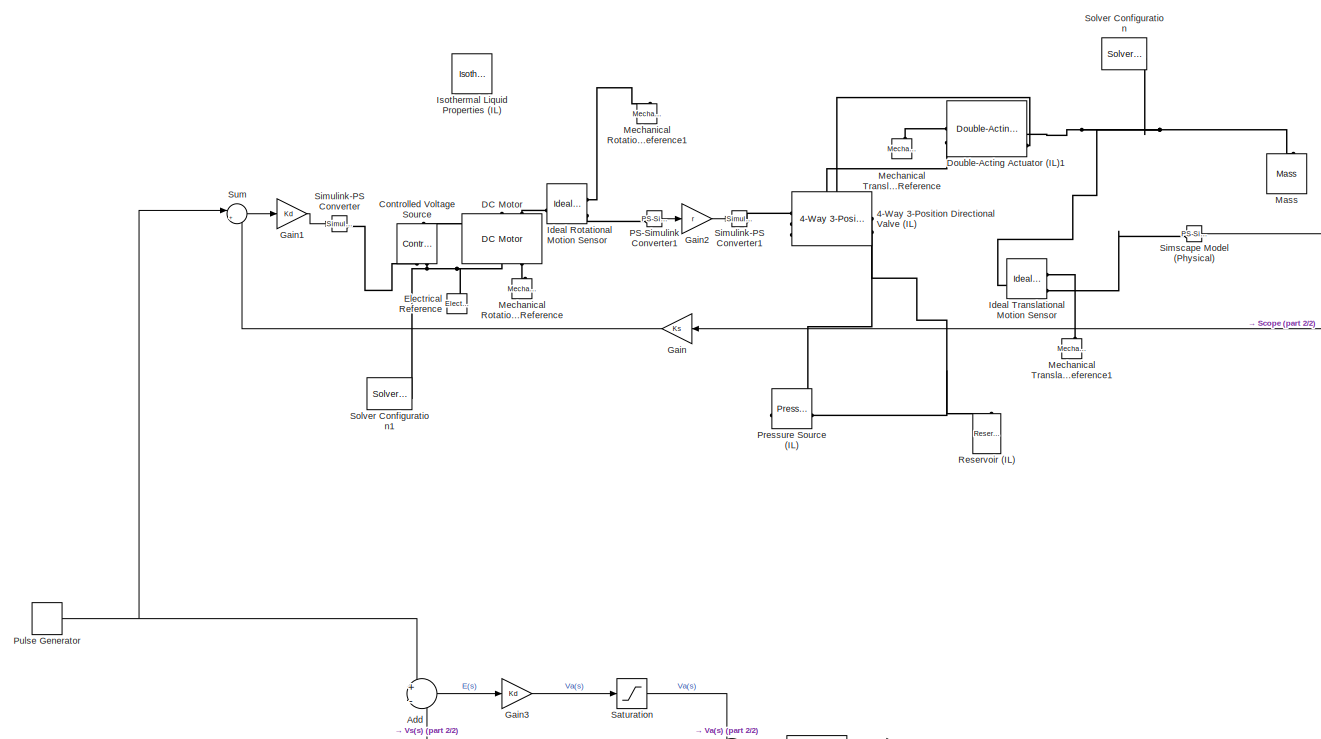
[diagram: root canvas - part 1/2, middle left region]
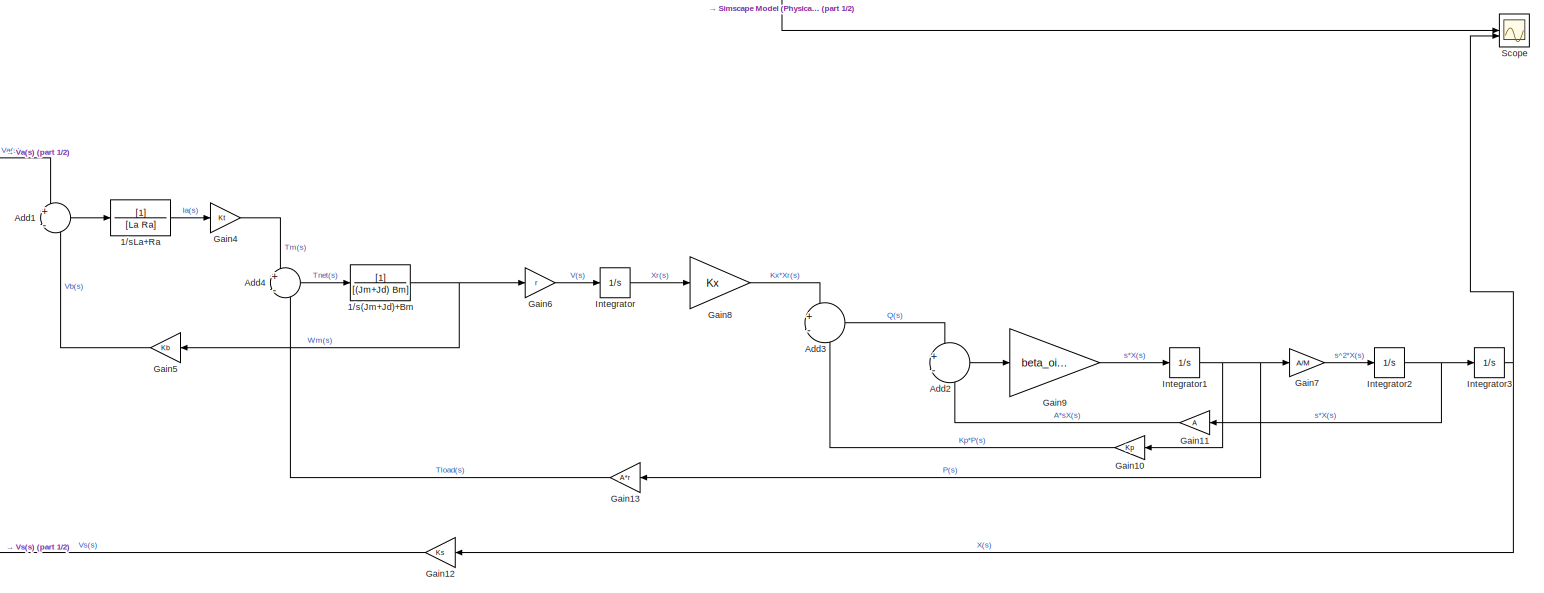
[diagram: root canvas - part 2/2, bottom center region]
MODEL slx_182fb270e482
KIND model
CONFIG AbsTol = 1e-3
CONFIG EnableMultiTasking = off
CONFIG FixedStep = auto
CONFIG MaxStep = 1e-4
CONFIG MinStep = auto
CONFIG RelTol = 1e-3
CONFIG SampleTimeConstraint = Unconstrained
CONFIG SolverName = ode15s
CONFIG StartTime = 0.0
CONFIG StopTime = 10.0
BLOCK [TransferFcn] 1//s(Jm+Jd)+Bm
  Denominator = [(Jm+Jd) Bm]
BLOCK [TransferFcn] 1//sLa+Ra
  Denominator = [La Ra]
BLOCK [Reference] 4-Way 3-Position Directional Valve (IL)  REF=SimscapeFluids_lib/Isothermal Liquid/Valves & Orifices/Directional Control
Valves/4-Way 3-Position
Directional Valve
(IL)
  SourceBlock = SimscapeFluids_lib/Isothermal Liquid/Valves & Orifices/Directional Control\nValves/4-Way 3-Position\nDirectional Valve\n(IL)
  SourceType = 4-Way 3-Position\nDirectional Valve\n(IL)
BLOCK [Sum] Add
  Inputs = +-
BLOCK [Sum] Add1
  Inputs = +-
BLOCK [Sum] Add2
  Inputs = +-
BLOCK [Sum] Add3
  Inputs = +-
BLOCK [Sum] Add4
  Inputs = +-
BLOCK [Reference] Controlled Voltage Source  REF=fl_lib/Electrical/Electrical Sources/Controlled Voltage
Source
  NameLocation = right
  SourceBlock = fl_lib/Electrical/Electrical Sources/Controlled Voltage\nSource
  SourceType = Controlled Voltage\nSource
BLOCK [Reference] DC Motor  REF=ee_lib/Electromechanical/Brushed Motors/DC Motor
  NameLocation = right
  SourceBlock = ee_lib/Electromechanical/Brushed Motors/DC Motor
  SourceType = DC Motor
BLOCK [Reference] Double-Acting Actuator (IL)1  REF=SimscapeFluids_lib/Isothermal Liquid/Actuators/Double-Acting
Actuator (IL)
  SourceBlock = SimscapeFluids_lib/Isothermal Liquid/Actuators/Double-Acting\nActuator (IL)
  SourceType = Double-Acting\nActuator (IL)
BLOCK [Reference] Electrical Reference  REF=fl_lib/Electrical/Electrical Elements/Electrical Reference
  NameLocation = right
  SourceBlock = fl_lib/Electrical/Electrical Elements/Electrical Reference
  SourceType = Electrical Reference
BLOCK [Gain] Gain
  Gain = Ks
  NameLocation = top
BLOCK [Gain] Gain1
  Gain = Kd
BLOCK [Gain] Gain10
  Gain = Kp
  NameLocation = top
BLOCK [Gain] Gain11
  Gain = A
  NameLocation = top
BLOCK [Gain] Gain12
  Gain = Ks
  NameLocation = top
BLOCK [Gain] Gain13
  Gain = A*r
  NameLocation = top
BLOCK [Gain] Gain2
  Gain = r
BLOCK [Gain] Gain3
  Gain = Kd
BLOCK [Gain] Gain4
  Gain = Kt
BLOCK [Gain] Gain5
  Gain = Kb
  NameLocation = top
BLOCK [Gain] Gain6
  Gain = r
BLOCK [Gain] Gain7
  Gain = A/M
BLOCK [Gain] Gain8
  Gain = Kx
BLOCK [Gain] Gain9
  Gain = beta_oil/(0.1*A)
BLOCK [Reference] Ideal Rotational Motion Sensor  REF=fl_lib/Mechanical/Mechanical Sensors/Ideal Rotational
Motion Sensor
  SourceBlock = fl_lib/Mechanical/Mechanical Sensors/Ideal Rotational\nMotion Sensor
  SourceType = Ideal Rotational\nMotion Sensor
BLOCK [Reference] Ideal Translational Motion Sensor  REF=fl_lib/Mechanical/Mechanical Sensors/Ideal Translational
Motion Sensor
  SourceBlock = fl_lib/Mechanical/Mechanical Sensors/Ideal Translational\nMotion Sensor
  SourceType = Ideal Translational\nMotion Sensor
BLOCK [Integrator] Integrator
BLOCK [Integrator] Integrator1
BLOCK [Integrator] Integrator2
BLOCK [Integrator] Integrator3
  LimitOutput = on
  LowerSaturationLimit = 0
  UpperSaturationLimit = 0.1
BLOCK [Reference] Isothermal Liquid Properties (IL)  REF=fl_lib/Isothermal Liquid/Utilities/Isothermal Liquid
Properties (IL)
  SourceBlock = fl_lib/Isothermal Liquid/Utilities/Isothermal Liquid\nProperties (IL)
  SourceType = Isothermal Liquid\nProperties (IL)
BLOCK [Reference] Mass  REF=fl_lib/Mechanical/Translational
Elements/Mass
  NameLocation = right
  SourceBlock = fl_lib/Mechanical/Translational\nElements/Mass
  SourceType = Mass
BLOCK [Reference] Mechanical Rotational Reference  REF=fl_lib/Mechanical/Rotational Elements/Mechanical
Rotational Reference
  NameLocation = right
  SourceBlock = fl_lib/Mechanical/Rotational Elements/Mechanical\nRotational Reference
  SourceType = Mechanical\nRotational Reference
BLOCK [Reference] Mechanical Rotational Reference1  REF=fl_lib/Mechanical/Rotational Elements/Mechanical
Rotational Reference
  NameLocation = right
  SourceBlock = fl_lib/Mechanical/Rotational Elements/Mechanical\nRotational Reference
  SourceType = Mechanical\nRotational Reference
BLOCK [Reference] Mechanical Translational Reference  REF=fl_lib/Mechanical/Translational
Elements/Mechanical
Translational
Reference
  NameLocation = right
  SourceBlock = fl_lib/Mechanical/Translational\nElements/Mechanical\nTranslational\nReference
  SourceType = Mechanical\nTranslational\nReference
BLOCK [Reference] Mechanical Translational Reference1  REF=fl_lib/Mechanical/Translational
Elements/Mechanical
Translational
Reference
  NameLocation = right
  SourceBlock = fl_lib/Mechanical/Translational\nElements/Mechanical\nTranslational\nReference
  SourceType = Mechanical\nTranslational\nReference
BLOCK [Reference] PS-Simulink Converter1  REF=nesl_utility/PS-Simulink
Converter
  SourceBlock = nesl_utility/PS-Simulink\nConverter
  SourceType = PS-Simulink\nConverter
BLOCK [Reference] Pressure Source (IL)  REF=fl_lib/Isothermal Liquid/Sources/Pressure Source (IL)
  NameLocation = top
  SourceBlock = fl_lib/Isothermal Liquid/Sources/Pressure Source (IL)
  SourceType = Pressure Source (IL)
BLOCK [DiscretePulseGenerator] Pulse Generator
  Amplitude = 0.1
  Period = 10
  PulseType = Time based
  PulseWidth = 50
BLOCK [Reference] Reservoir (IL)  REF=fl_lib/Isothermal Liquid/Elements/Reservoir (IL)
  NameLocation = right
  SourceBlock = fl_lib/Isothermal Liquid/Elements/Reservoir (IL)
  SourceType = Reservoir (IL)
BLOCK [Saturate] Saturation
  LowerLimit = -24
  UpperLimit = 24
BLOCK [Scope] Scope
  ActiveDisplayYMaximum = 0.12484583249643053
  ActiveDisplayYMinimum = -0.021104274667817609
  Floating = off
  GraphicalSettings = {"AxesScalingProperties":{"AlignXAxis":"Center","AlignYAxis":"Center","AutoScaleXAxisLimits":true,"AxesScaling":"Manual","AxesScalingNumUpdates":10,"ExpandOnly":true,"ScaleAxesLimitsAtStop":false,"XAxisDataRange":100,"YAxisDataRange":80},"DisplayProperties":{"ColorOrder":["auto","auto","auto","auto","auto","auto","auto","auto","auto","auto","auto","auto","auto","auto","auto","auto","auto","auto","...<+2183ch>
  LayoutDimensionsString = [1 1]
  MultipleDisplayCache = [{"MaxYLimMag":20123.306283872571,"MaxYLimReal":0.12484583249643053,"MinYLimMag":0,"MinYLimReal":-0.021104274667817609,"PlotAsMagnitudePhase":false,"ShowGrid":true,"ShowLegend":true,"Title":"%<SignalLabel>","YLabel":""}]
  NumInputPorts = 2
  ScopeFrameLocation = container
  ShowLegend = on
  WasSavedAsWebScope = on
  WindowPosition = [128.000000,48.000000,1280.000000,768.000000,]
BLOCK [Reference] Simscape Model (Physical)  REF=nesl_utility/PS-Simulink
Converter
  SourceBlock = nesl_utility/PS-Simulink\nConverter
  SourceType = PS-Simulink\nConverter
BLOCK [Reference] Simulink-PS Converter  REF=nesl_utility/Simulink-PS
Converter
  SourceBlock = nesl_utility/Simulink-PS\nConverter
  SourceType = Simulink-PS\nConverter
BLOCK [Reference] Simulink-PS Converter1  REF=nesl_utility/Simulink-PS
Converter
  SourceBlock = nesl_utility/Simulink-PS\nConverter
  SourceType = Simulink-PS\nConverter
BLOCK [Reference] Solver Configuration  REF=nesl_utility/Solver
Configuration
  SourceBlock = nesl_utility/Solver\nConfiguration
  SourceType = Solver\nConfiguration
BLOCK [Reference] Solver Configuration1  REF=nesl_utility/Solver
Configuration
  SourceBlock = nesl_utility/Solver\nConfiguration
  SourceType = Solver\nConfiguration
BLOCK [Sum] Sum
  Inputs = |+-
NET 1//s(Jm+Jd)+Bm:1 -> Gain5:1, Gain6:1
LINE 1//sLa+Ra:1 -> Gain4:1
LINE Add1:1 -> 1//sLa+Ra:1
LINE Add2:1 -> Gain9:1
LINE Add3:1 -> Add2:1
LINE Add4:1 -> 1//s(Jm+Jd)+Bm:1
LINE Add:1 -> Gain3:1
LINE Gain10:1 -> Add3:2
LINE Gain11:1 -> Add2:2
LINE Gain12:1 -> Add:2
LINE Gain13:1 -> Add4:2
LINE Gain1:1 -> Simulink-PS Converter:1
LINE Gain2:1 -> Simulink-PS Converter1:1
LINE Gain3:1 -> Saturation:1
LINE Gain4:1 -> Add4:1
LINE Gain5:1 -> Add1:2
LINE Gain6:1 -> Integrator:1
LINE Gain7:1 -> Integrator2:1
LINE Gain8:1 -> Add3:1
LINE Gain9:1 -> Integrator1:1
LINE Gain:1 -> Sum:2
NET Integrator1:1 -> Gain10:1, Gain13:1, Gain7:1
NET Integrator2:1 -> Gain11:1, Integrator3:1
NET Integrator3:1 -> Gain12:1, Scope:2
LINE Integrator:1 -> Gain8:1
LINE PS-Simulink Converter1:1 -> Gain2:1
NET Pulse Generator:1 -> Add:1, Sum:1
LINE Saturation:1 -> Add1:1
NET Simscape Model (Physical):1 -> Gain:1, Scope:1
LINE Sum:1 -> Gain1:1
PLINE 4-Way 3-Position Directional Valve (IL):LConn1 -- Simulink-PS Converter1:RConn1
PLINE 4-Way 3-Position Directional Valve (IL):LConn2 -- Double-Acting Actuator (IL)1:LConn2
PLINE 4-Way 3-Position Directional Valve (IL):LConn3 -- Double-Acting Actuator (IL)1:RConn3
PLINE 4-Way 3-Position Directional Valve (IL):RConn1 -- Pressure Source (IL):RConn1
PNET net1: 4-Way 3-Position Directional Valve (IL):RConn2 -- Pressure Source (IL):LConn1 -- Reservoir (IL):LConn1
PLINE Controlled Voltage Source:LConn1 -- DC Motor:LConn1
PLINE Controlled Voltage Source:RConn1 -- Simulink-PS Converter:RConn1
PNET net2: Controlled Voltage Source:RConn2 -- DC Motor:RConn1 -- Electrical Reference:LConn1 -- Solver Configuration1:RConn1
PLINE DC Motor:LConn2 -- Ideal Rotational Motion Sensor:LConn1
PLINE DC Motor:RConn2 -- Mechanical Rotational Reference:LConn1
PLINE Double-Acting Actuator (IL)1:LConn1 -- Mechanical Translational Reference:LConn1
PNET net3: Double-Acting Actuator (IL)1:RConn2 -- Ideal Translational Motion Sensor:LConn1 -- Mass:LConn1 -- Solver Configuration:RConn1
PLINE Ideal Rotational Motion Sensor:RConn1 -- Mechanical Rotational Reference1:LConn1
PLINE Ideal Rotational Motion Sensor:RConn3 -- PS-Simulink Converter1:LConn1
PLINE Ideal Translational Motion Sensor:RConn1 -- Mechanical Translational Reference1:LConn1
PLINE Ideal Translational Motion Sensor:RConn3 -- Simscape Model (Physical):LConn1
note: NET lines group one-source signal fan-out (src -> all destinations, sorted); 1:1 wires keep LINE; PNET lines group multi-terminal physical nets as a canonical sorted terminal list (undirected conserving connections); 2-terminal nets keep the pairwise PLINE form
